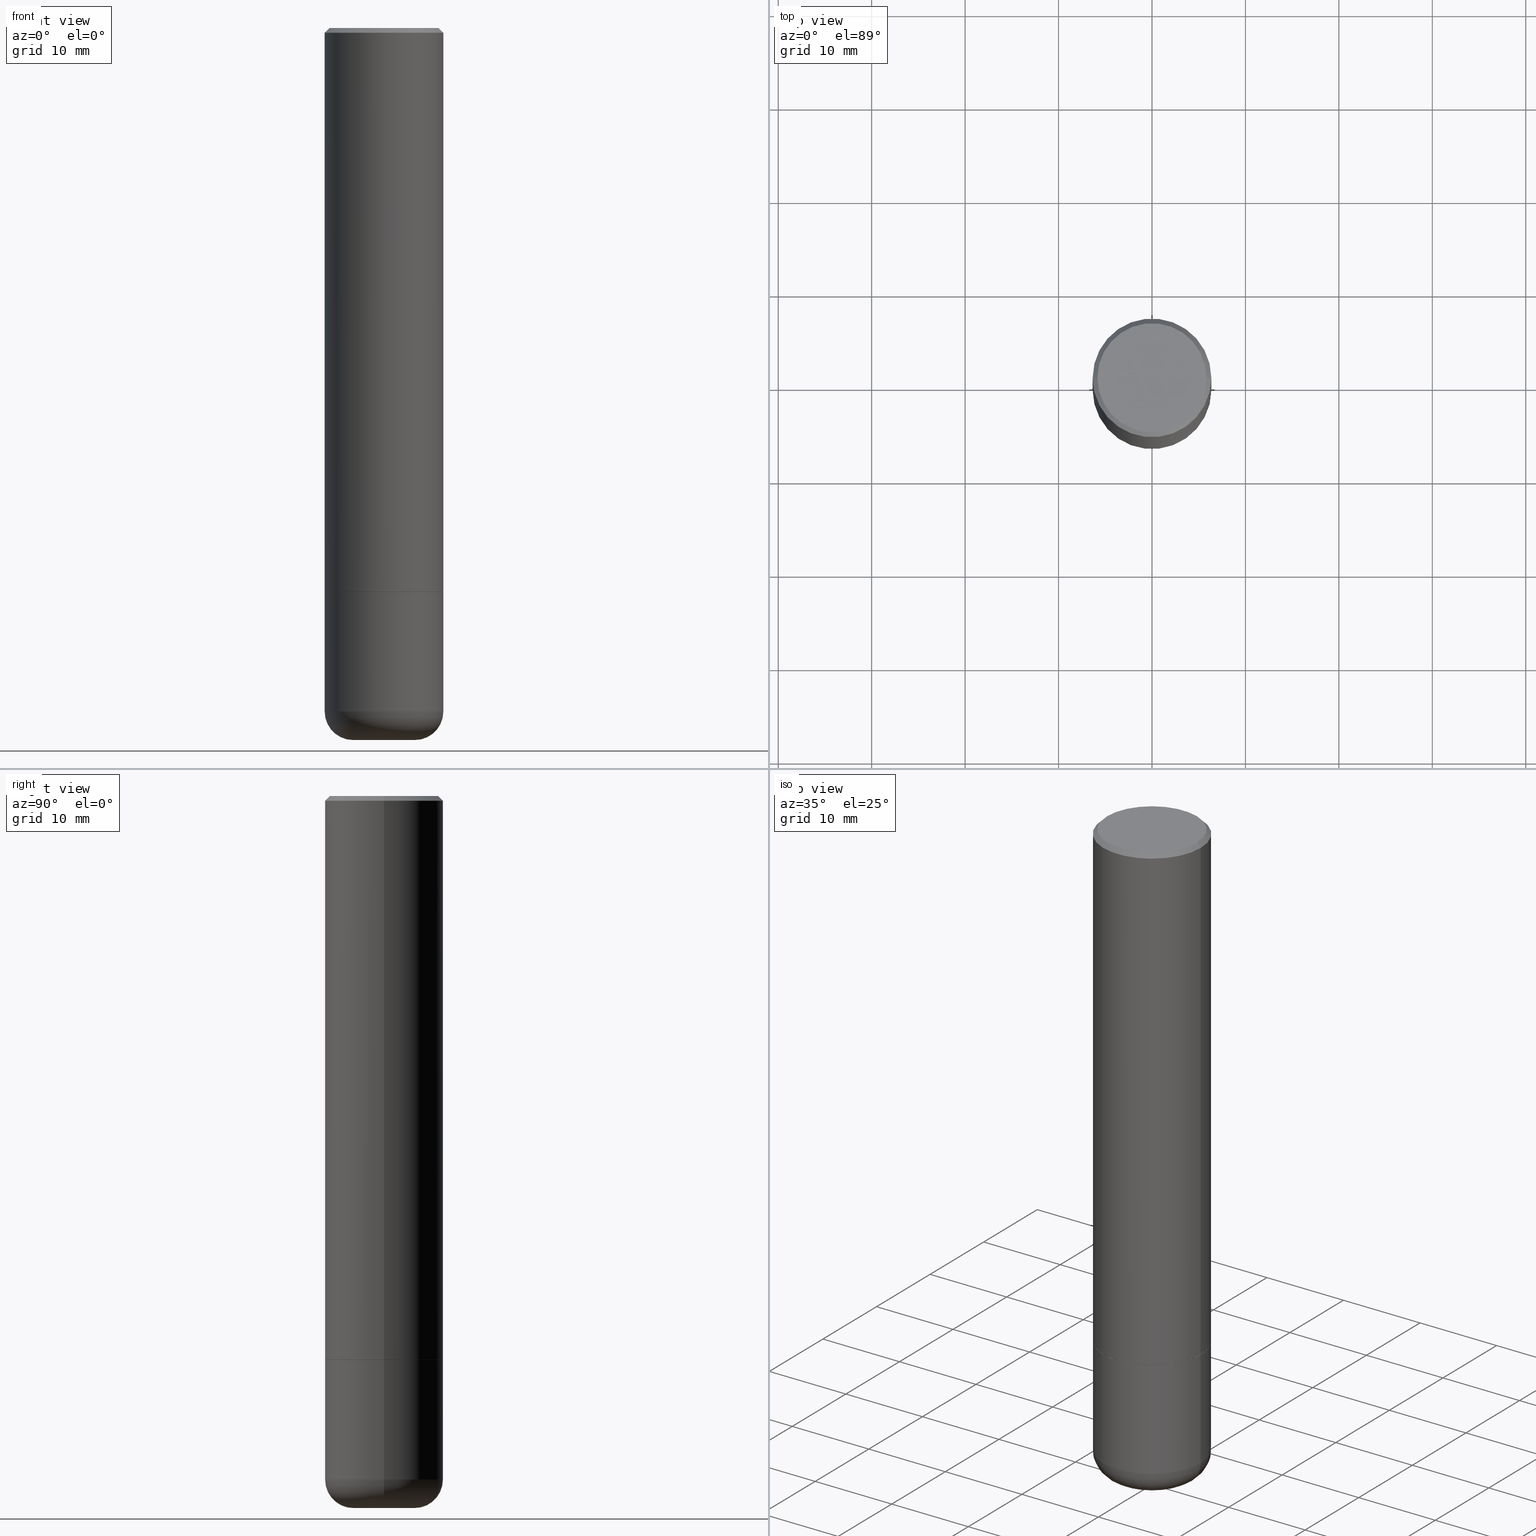
[diagram: canonical four-view strip — front | top / right | iso, engineering-drawing reading convention]
A machine part, canonical four-view strip (front | top / right | iso — engineering-drawing reading convention). The complete STEP part file that produces these views, byte-faithful:
ISO-10303-21;
HEADER;
FILE_DESCRIPTION (( 'STEP AP203' ),
    '1' );
FILE_NAME ('35692.STEP',
    '2022-11-02T20:43:39',
    ( '' ),
    ( '' ),
    'SwSTEP 2.0',
    'SolidWorks 2022',
    '' );
FILE_SCHEMA (( 'CONFIG_CONTROL_DESIGN' ));
ENDSEC;

DATA;
#1 = DIRECTION ( 'NONE',  ( -2.445468806185136597E-29, 3.491481338843145583E-15, 1.000000000000000000 ) ) ;
#2 = ORIENTED_EDGE ( 'NONE', *, *, #187, .T. ) ;
#3 = AXIS2_PLACEMENT_3D ( 'NONE', #98, #478, #486 ) ;
#4 = CYLINDRICAL_SURFACE ( 'NONE', #473, 0.2499999999999994449 ) ;
#5 = ORIENTED_EDGE ( 'NONE', *, *, #272, .T. ) ;
#6 = VECTOR ( 'NONE', #15, 39.37007874015748143 ) ;
#7 = DIRECTION ( 'NONE',  ( -1.000000000000000000, 7.105427357601001859E-15, 0.000000000000000000 ) ) ;
#8 = ADVANCED_FACE ( 'NONE', ( #192 ), #345, .T. ) ;
#9 = FACE_OUTER_BOUND ( 'NONE', #102, .T. ) ;
#10 = ORIENTED_EDGE ( 'NONE', *, *, #234, .F. ) ;
#11 = DIRECTION ( 'NONE',  ( 1.000000000000000000, -6.982962677686270655E-15, 4.883557194083114583E-29 ) ) ;
#12 = EDGE_CURVE ( 'NONE', #194, #444, #91, .T. ) ;
#13 = APPROVAL_DATE_TIME ( #344, #339 ) ;
#14 = VECTOR ( 'NONE', #199, 39.37007874015748854 ) ;
#15 = DIRECTION ( 'NONE',  ( -2.445468806185136877E-29, 3.491481338843145188E-15, 1.000000000000000000 ) ) ;
#16 = DIRECTION ( 'NONE',  ( -0.9993908270190957621, 6.856857904024554893E-15, -0.03489949670250130226 ) ) ;
#17 = CONICAL_SURFACE ( 'NONE', #134, 0.2489999999999995828, 0.7853981633974141952 ) ;
#18 =( NAMED_UNIT ( * ) SI_UNIT ( $, .STERADIAN. ) SOLID_ANGLE_UNIT ( ) );
#19 = AXIS2_PLACEMENT_3D ( 'NONE', #111, #159, #421 ) ;
#20 = APPROVAL_ROLE ( '' ) ;
#21 = ADVANCED_FACE ( 'NONE', ( #293 ), #174, .T. ) ;
#22 = DIRECTION ( 'NONE',  ( -2.445468806185136597E-29, 3.491481338843145583E-15, 1.000000000000000000 ) ) ;
#23 = DATE_AND_TIME ( #485, #222 ) ;
#24 = EDGE_CURVE ( 'NONE', #220, #57, #262, .T. ) ;
#25 = DIRECTION ( 'NONE',  ( -2.445468806185136597E-29, 3.491481338843145583E-15, 1.000000000000000000 ) ) ;
#26 = APPROVAL_PERSON_ORGANIZATION ( #204, #247, #312 ) ;
#27 = DIRECTION ( 'NONE',  ( 0.7071067811865475727, -7.319954787623256045E-15, -0.7071067811865474617 ) ) ;
#28 = DATE_TIME_ROLE ( 'classification_date' ) ;
#29 = DIRECTION ( 'NONE',  ( -6.982962677686266711E-15, -1.000000000000000000, 3.491481338843145583E-15 ) ) ;
#30 = APPROVAL_DATE_TIME ( #23, #213 ) ;
#31 = CARTESIAN_POINT ( 'NONE',  ( -0.2489999999999995828, -6.517718313361602992E-15, -2.375000000000000000 ) ) ;
#32 = VERTEX_POINT ( 'NONE', #308 ) ;
#33 = CIRCLE ( 'NONE', #367, 0.2500000000000000555 ) ;
#34 = DIRECTION ( 'NONE',  ( -2.445468806185136597E-29, 3.491481338843145583E-15, 1.000000000000000000 ) ) ;
#35 = ORIENTED_EDGE ( 'NONE', *, *, #150, .F. ) ;
#36 = EDGE_LOOP ( 'NONE', ( #142, #110 ) ) ;
#37 = DIRECTION ( 'NONE',  ( -2.445468806185136877E-29, 3.491481338843145188E-15, 1.000000000000000000 ) ) ;
#38 = DIRECTION ( 'NONE',  ( -2.445468806185136597E-29, 3.491481338843145583E-15, 1.000000000000000000 ) ) ;
#39 = ORIENTED_EDGE ( 'NONE', *, *, #41, .T. ) ;
#40 = DIRECTION ( 'NONE',  ( 1.000000000000000000, -6.982962677686269077E-15, 0.000000000000000000 ) ) ;
#41 = EDGE_CURVE ( 'NONE', #444, #409, #276, .T. ) ;
#42 = FACE_OUTER_BOUND ( 'NONE', #218, .T. ) ;
#43 = ORIENTED_EDGE ( 'NONE', *, *, #191, .F. ) ;
#44 = AXIS2_PLACEMENT_3D ( 'NONE', #453, #372, #337 ) ;
#45 = CARTESIAN_POINT ( 'NONE',  ( 7.336406418555409790E-29, -1.047444401652943635E-14, -3.000000000000000444 ) ) ;
#46 = ORIENTED_EDGE ( 'NONE', *, *, #371, .T. ) ;
#47 = DIRECTION ( 'NONE',  ( 1.000000000000000000, -6.982962677686259611E-15, 0.000000000000000000 ) ) ;
#48 = ORIENTED_EDGE ( 'NONE', *, *, #59, .T. ) ;
#49 = DIRECTION ( 'NONE',  ( -0.7071067811865232589, 7.493145998870265808E-15, 0.7071067811865715536 ) ) ;
#50 = AXIS2_PLACEMENT_3D ( 'NONE', #446, #323, #320 ) ;
#51 = DATE_TIME_ROLE ( 'creation_date' ) ;
#52 = CIRCLE ( 'NONE', #384, 0.2499999999999995837 ) ;
#53 = PLANE ( 'NONE',  #466 ) ;
#54 = DIRECTION ( 'NONE',  ( 1.000000000000000000, -6.982962677686270655E-15, 0.000000000000000000 ) ) ;
#55 = EDGE_LOOP ( 'NONE', ( #487, #411, #46, #225 ) ) ;
#56 = PERSON_AND_ORGANIZATION_ROLE ( 'design_owner' ) ;
#57 = VERTEX_POINT ( 'NONE', #90 ) ;
#58 = ADVANCED_FACE ( 'NONE', ( #391 ), #17, .T. ) ;
#59 = EDGE_CURVE ( 'NONE', #461, #374, #165, .T. ) ;
#60 = MECHANICAL_CONTEXT ( 'NONE', #394, 'mechanical' ) ;
#61 = AXIS2_PLACEMENT_3D ( 'NONE', #277, #314, #239 ) ;
#62 = DIRECTION ( 'NONE',  ( -1.000000000000000000, 6.982962677686259611E-15, 0.000000000000000000 ) ) ;
#63 = CC_DESIGN_PERSON_AND_ORGANIZATION_ASSIGNMENT ( #183, #438, ( #392 ) ) ;
#64 = DIRECTION ( 'NONE',  ( 1.000000000000000000, -6.982962677686266711E-15, 0.000000000000000000 ) ) ;
#65 = APPROVAL_PERSON_ORGANIZATION ( #351, #339, #20 ) ;
#66 = CARTESIAN_POINT ( 'NONE',  ( 0.2499999999999993061, -1.784954126219741456E-15, -0.02000000000000011838 ) ) ;
#67 = CARTESIAN_POINT ( 'NONE',  ( 7.336406418555409790E-29, -1.047444401652943635E-14, -3.000000000000000444 ) ) ;
#68 = ORIENTED_EDGE ( 'NONE', *, *, #41, .F. ) ;
#69 = DIRECTION ( 'NONE',  ( -2.445468806185136597E-29, 3.491481338843145583E-15, 1.000000000000000000 ) ) ;
#70 = ORIENTED_EDGE ( 'NONE', *, *, #359, .F. ) ;
#71 = VERTEX_POINT ( 'NONE', #313 ) ;
#72 = AXIS2_PLACEMENT_3D ( 'NONE', #139, #107, #481 ) ;
#73 = PLANE ( 'NONE',  #114 ) ;
#74 = EDGE_LOOP ( 'NONE', ( #301, #79, #116, #68 ) ) ;
#75 = EDGE_LOOP ( 'NONE', ( #369, #232, #39, #457 ) ) ;
#76 = CARTESIAN_POINT ( 'NONE',  ( 5.807988414689700538E-29, -8.292268179752471696E-15, -2.375000000000000000 ) ) ;
#77 = EDGE_LOOP ( 'NONE', ( #333, #417 ) ) ;
#78 = DIRECTION ( 'NONE',  ( 1.000000000000000000, -6.982962677686270655E-15, 0.000000000000000000 ) ) ;
#79 = ORIENTED_EDGE ( 'NONE', *, *, #153, .T. ) ;
#80 = CIRCLE ( 'NONE', #352, 0.1200000000000000927 ) ;
#81 = AXIS2_PLACEMENT_3D ( 'NONE', #329, #148, #402 ) ;
#82 = DIRECTION ( 'NONE',  ( -2.445468806185136597E-29, 3.491481338843145583E-15, 1.000000000000000000 ) ) ;
#83 = ORIENTED_EDGE ( 'NONE', *, *, #234, .T. ) ;
#84 = FACE_OUTER_BOUND ( 'NONE', #74, .T. ) ;
#85 = COORDINATED_UNIVERSAL_TIME_OFFSET ( 5, 0, .BEHIND. ) ;
#86 = CARTESIAN_POINT ( 'NONE',  ( 7.042961335728249090E-29, -1.005548220925756617E-14, -2.880004569232299527 ) ) ;
#87 = CARTESIAN_POINT ( 'NONE',  ( -0.2499999999999994449, 1.776356839400246520E-15, -1.229733772563723783E-29 ) ) ;
#88 = EDGE_CURVE ( 'NONE', #198, #194, #464, .T. ) ;
#89 = DIRECTION ( 'NONE',  ( -2.445468806185136597E-29, 3.491481338843145583E-15, 1.000000000000000000 ) ) ;
#90 = CARTESIAN_POINT ( 'NONE',  ( -0.2499999999999995559, -2.402946323194996317E-15, -2.374000000000000110 ) ) ;
#91 = CIRCLE ( 'NONE', #231, 0.2500000000000000555 ) ;
#92 = EDGE_CURVE ( 'NONE', #57, #32, #202, .T. ) ;
#93 = CIRCLE ( 'NONE', #61, 0.2489999999999995828 ) ;
#94 = COORDINATED_UNIVERSAL_TIME_OFFSET ( 5, 0, .BEHIND. ) ;
#95 = CC_DESIGN_SECURITY_CLASSIFICATION ( #392, ( #399 ) ) ;
#96 = EDGE_CURVE ( 'NONE', #57, #259, #128, .T. ) ;
#97 = DIRECTION ( 'NONE',  ( 1.000000000000000000, -6.982962677686269077E-15, 0.000000000000000000 ) ) ;
#98 = CARTESIAN_POINT ( 'NONE',  ( 7.335837353245335032E-29, -1.047363154208458493E-14, -2.999767298070359800 ) ) ;
#99 = PRODUCT_RELATED_PRODUCT_CATEGORY ( 'detail', '', ( #284 ) ) ;
#100 = CIRCLE ( 'NONE', #488, 0.2489999999999995828 ) ;
#101 = DIRECTION ( 'NONE',  ( -1.000000000000000000, 6.982962677686259611E-15, 0.000000000000000000 ) ) ;
#102 = EDGE_LOOP ( 'NONE', ( #70, #407, #200, #122 ) ) ;
#103 =( GEOMETRIC_REPRESENTATION_CONTEXT ( 3 ) GLOBAL_UNCERTAINTY_ASSIGNED_CONTEXT ( ( #331 ) ) GLOBAL_UNIT_ASSIGNED_CONTEXT ( ( #275, #387, #18 ) ) REPRESENTATION_CONTEXT ( 'NONE', 'WORKASPACE' ) );
#104 = DIRECTION ( 'NONE',  ( 7.105427357601001859E-15, 1.000000000000000000, -3.491481338843145583E-15 ) ) ;
#105 = CALENDAR_DATE ( 2022, 2, 11 ) ;
#106 = ADVANCED_FACE ( 'NONE', ( #299 ), #168, .T. ) ;
#107 = DIRECTION ( 'NONE',  ( -2.445468806185136597E-29, 3.491481338843145583E-15, 1.000000000000000000 ) ) ;
#108 = PRODUCT_DEFINITION_SHAPE ( 'NONE', 'NONE',  #427 ) ;
#109 = CARTESIAN_POINT ( 'NONE',  ( 0.1289528157401959862, -1.137491671602577837E-14, -3.000000000000000444 ) ) ;
#110 = ORIENTED_EDGE ( 'NONE', *, *, #359, .T. ) ;
#111 = CARTESIAN_POINT ( 'NONE',  ( 0.000000000000000000, 0.000000000000000000, 0.000000000000000000 ) ) ;
#112 = ORIENTED_EDGE ( 'NONE', *, *, #271, .T. ) ;
#113 = DIRECTION ( 'NONE',  ( 2.445468806185136597E-29, -3.491481338843145583E-15, -1.000000000000000000 ) ) ;
#114 = AXIS2_PLACEMENT_3D ( 'NONE', #76, #342, #223 ) ;
#115 = DIRECTION ( 'NONE',  ( 1.000000000000000000, -6.982962677686269866E-15, 0.000000000000000000 ) ) ;
#116 = ORIENTED_EDGE ( 'NONE', *, *, #350, .F. ) ;
#117 = MANIFOLD_SOLID_BREP ( 'Body-Move/Copy2[1]', #210 ) ;
#118 = CC_DESIGN_PERSON_AND_ORGANIZATION_ASSIGNMENT ( #201, #56, ( #284 ) ) ;
#119 = CARTESIAN_POINT ( 'NONE',  ( 0.2489999999999995828, -1.003102588649634920E-14, -2.375000000000000000 ) ) ;
#120 = EDGE_LOOP ( 'NONE', ( #492, #336, #462, #246 ) ) ;
#121 = DIRECTION ( 'NONE',  ( 1.000000000000000000, -6.982962677686266711E-15, 4.876176775795935232E-29 ) ) ;
#122 = ORIENTED_EDGE ( 'NONE', *, *, #187, .F. ) ;
#123 = VECTOR ( 'NONE', #135, 39.37007874015748143 ) ;
#124 = CIRCLE ( 'NONE', #430, 0.1289528157401959862 ) ;
#125 = ORIENTED_EDGE ( 'NONE', *, *, #143, .F. ) ;
#126 = ADVANCED_FACE ( 'NONE', ( #248 ), #163, .F. ) ;
#127 = CARTESIAN_POINT ( 'NONE',  ( 7.335837353245335032E-29, -1.047363154208458493E-14, -2.999767298070359800 ) ) ;
#128 = LINE ( 'NONE', #87, #424 ) ;
#129 = CARTESIAN_POINT ( 'NONE',  ( -0.1300000000000001710, -9.131776652769433533E-15, -2.880004569232299527 ) ) ;
#130 = LOCAL_TIME ( 16, 43, 39.00000000000000000, #318 ) ;
#131 = DIRECTION ( 'NONE',  ( 2.438088387897960049E-29, -3.491481338843145188E-15, -1.000000000000000000 ) ) ;
#132 = CALENDAR_DATE ( 2022, 2, 11 ) ;
#133 = DIRECTION ( 'NONE',  ( 1.000000000000000000, -6.982962677686266711E-15, 0.000000000000000000 ) ) ;
#134 = AXIS2_PLACEMENT_3D ( 'NONE', #470, #22, #133 ) ;
#135 = DIRECTION ( 'NONE',  ( 0.9993908270190957621, -6.978169709227543066E-15, -0.03489949670250130226 ) ) ;
#136 = APPROVAL_DATE_TIME ( #431, #247 ) ;
#137 = DIRECTION ( 'NONE',  ( 1.000000000000000000, -6.982962677686262766E-15, 0.000000000000000000 ) ) ;
#138 = EDGE_LOOP ( 'NONE', ( #295, #48, #255 ) ) ;
#139 = CARTESIAN_POINT ( 'NONE',  ( 4.890937612370302936E-31, -6.982962677686332285E-17, -0.02000000000000011838 ) ) ;
#140 = VECTOR ( 'NONE', #211, 39.37007874015748143 ) ;
#141 = DIRECTION ( 'NONE',  ( -1.000000000000000000, 6.982962677686265922E-15, -4.876176775795935793E-29 ) ) ;
#142 = ORIENTED_EDGE ( 'NONE', *, *, #330, .T. ) ;
#143 = EDGE_CURVE ( 'NONE', #160, #259, #397, .T. ) ;
#144 = CC_DESIGN_DATE_AND_TIME_ASSIGNMENT ( #383, #51, ( #427 ) ) ;
#145 = AXIS2_PLACEMENT_3D ( 'NONE', #340, #309, #11 ) ;
#146 = DIRECTION ( 'NONE',  ( -2.445468806185136597E-29, 3.491481338843145583E-15, 1.000000000000000000 ) ) ;
#147 = DIRECTION ( 'NONE',  ( -2.445468806185136597E-29, 3.491481338843145583E-15, 1.000000000000000000 ) ) ;
#148 = DIRECTION ( 'NONE',  ( -2.445468806185136597E-29, 3.491481338843145583E-15, 1.000000000000000000 ) ) ;
#149 = EDGE_LOOP ( 'NONE', ( #454, #227, #307, #158 ) ) ;
#150 = EDGE_CURVE ( 'NONE', #264, #444, #80, .T. ) ;
#151 = CARTESIAN_POINT ( 'NONE',  ( -1.043851414335219820E-46, 1.490343170380447200E-32, 4.268512490100411279E-18 ) ) ;
#152 = VERTEX_POINT ( 'NONE', #290 ) ;
#153 = EDGE_CURVE ( 'NONE', #194, #341, #401, .T. ) ;
#154 = FACE_OUTER_BOUND ( 'NONE', #381, .T. ) ;
#155 = ORIENTED_EDGE ( 'NONE', *, *, #474, .F. ) ;
#156 = CONICAL_SURFACE ( 'NONE', #480, 0.1289528157401959862, 1.562069680534929894 ) ;
#157 = CARTESIAN_POINT ( 'NONE',  ( 0.000000000000000000, 0.000000000000000000, 0.000000000000000000 ) ) ;
#158 = ORIENTED_EDGE ( 'NONE', *, *, #92, .F. ) ;
#159 = DIRECTION ( 'NONE',  ( -2.445468806185136597E-29, 3.491481338843145583E-15, 1.000000000000000000 ) ) ;
#160 = VERTEX_POINT ( 'NONE', #66 ) ;
#161 = CARTESIAN_POINT ( 'NONE',  ( 0.2499999999999995837, -1.003800884917403364E-14, -2.375000000000000000 ) ) ;
#162 = CC_DESIGN_PERSON_AND_ORGANIZATION_ASSIGNMENT ( #441, #216, ( #399 ) ) ;
#163 = CONICAL_SURFACE ( 'NONE', #3, 0.1022878157401959226, 1.535889741755009696 ) ;
#164 = PERSON_AND_ORGANIZATION ( #304, #238 ) ;
#165 = LINE ( 'NONE', #349, #184 ) ;
#166 = LINE ( 'NONE', #476, #6 ) ;
#167 = DIRECTION ( 'NONE',  ( -2.445468806185136877E-29, 3.491481338843145188E-15, 1.000000000000000000 ) ) ;
#168 = CYLINDRICAL_SURFACE ( 'NONE', #50, 0.2499999999999994449 ) ;
#169 = APPROVAL_STATUS ( 'not_yet_approved' ) ;
#170 = APPROVAL_PERSON_ORGANIZATION ( #445, #213, #326 ) ;
#171 = LOCAL_TIME ( 16, 43, 39.00000000000000000, #358 ) ;
#172 = DIRECTION ( 'NONE',  ( 1.000000000000000000, 0.000000000000000000, 0.000000000000000000 ) ) ;
#173 = LINE ( 'NONE', #362, #415 ) ;
#174 = CONICAL_SURFACE ( 'NONE', #285, 0.2499999999999993061, 0.7853981633974483900 ) ;
#175 = DIRECTION ( 'NONE',  ( 0.9999619230641714207, -6.890705306874825328E-15, -0.008726535498369011531 ) ) ;
#176 = AXIS2_PLACEMENT_3D ( 'NONE', #332, #1, #294 ) ;
#177 = PERSON_AND_ORGANIZATION ( #304, #238 ) ;
#178 = CARTESIAN_POINT ( 'NONE',  ( 5.807988414689700538E-29, -8.292268179752471696E-15, -2.375000000000000000 ) ) ;
#179 = EDGE_CURVE ( 'NONE', #461, #71, #396, .T. ) ;
#180 = ORIENTED_EDGE ( 'NONE', *, *, #330, .F. ) ;
#181 = APPROVAL_STATUS ( 'not_yet_approved' ) ;
#182 = CARTESIAN_POINT ( 'NONE',  ( 1.745740669421621503E-15, 0.2499999999999912847, -2.375000000000000888 ) ) ;
#183 = PERSON_AND_ORGANIZATION ( #304, #238 ) ;
#184 = VECTOR ( 'NONE', #16, 39.37007874015748143 ) ;
#185 = CARTESIAN_POINT ( 'NONE',  ( 0.2489999999999995828, -1.003102588649634920E-14, -2.375000000000000000 ) ) ;
#186 = CIRCLE ( 'NONE', #287, 0.2499999999999995837 ) ;
#187 = EDGE_CURVE ( 'NONE', #343, #259, #368, .T. ) ;
#188 = CARTESIAN_POINT ( 'NONE',  ( 7.042961335728249090E-29, -1.005548220925756617E-14, -2.880004569232299527 ) ) ;
#189 = CARTESIAN_POINT ( 'NONE',  ( 4.890937612370302936E-31, -6.982962677686332285E-17, -0.02000000000000011838 ) ) ;
#190 = ORIENTED_EDGE ( 'NONE', *, *, #260, .F. ) ;
#191 = EDGE_CURVE ( 'NONE', #152, #160, #173, .T. ) ;
#192 = FACE_OUTER_BOUND ( 'NONE', #149, .T. ) ;
#193 = DIRECTION ( 'NONE',  ( 2.445468806185136597E-29, -3.491481338843145583E-15, -1.000000000000000000 ) ) ;
#194 = VERTEX_POINT ( 'NONE', #214 ) ;
#195 = LINE ( 'NONE', #235, #14 ) ;
#196 = CLOSED_SHELL ( 'NONE', ( #58, #106, #302, #21, #437, #8, #385, #468 ) ) ;
#197 = DIRECTION ( 'NONE',  ( 1.000000000000000000, -6.982962677686259611E-15, 0.000000000000000000 ) ) ;
#198 = VERTEX_POINT ( 'NONE', #279 ) ;
#199 = DIRECTION ( 'NONE',  ( -0.9999619230641714207, 6.952228252019186602E-15, -0.008726535498369011531 ) ) ;
#200 = ORIENTED_EDGE ( 'NONE', *, *, #143, .T. ) ;
#201 = PERSON_AND_ORGANIZATION ( #304, #238 ) ;
#202 = CIRCLE ( 'NONE', #328, 0.2499999999999995837 ) ;
#203 = AXIS2_PLACEMENT_3D ( 'NONE', #151, #34, #410 ) ;
#204 = PERSON_AND_ORGANIZATION ( #304, #238 ) ;
#205 = LOCAL_TIME ( 16, 43, 39.00000000000000000, #94 ) ;
#206 = DIRECTION ( 'NONE',  ( 0.000000000000000000, 0.000000000000000000, 1.000000000000000000 ) ) ;
#207 = APPLICATION_PROTOCOL_DEFINITION ( 'international standard', 'config_control_design', 1994, #479 ) ;
#208 = AXIS2_PLACEMENT_3D ( 'NONE', #86, #89, #316 ) ;
#209 = CARTESIAN_POINT ( 'NONE',  ( 0.1289528157401959862, -1.135912455072205370E-14, -3.000000000000000444 ) ) ;
#210 = CLOSED_SHELL ( 'NONE', ( #265, #450, #319, #126, #317, #215, #292, #356, #280 ) ) ;
#211 = DIRECTION ( 'NONE',  ( -2.445468806185136877E-29, 3.491481338843145188E-15, 1.000000000000000000 ) ) ;
#212 = CIRCLE ( 'NONE', #269, 0.1022878157401959226 ) ;
#213 = APPROVAL ( #181, 'UNSPECIFIED' ) ;
#214 = CARTESIAN_POINT ( 'NONE',  ( -0.2500000000000000555, -7.397518355104768470E-15, -2.880004569232299527 ) ) ;
#215 = ADVANCED_FACE ( 'NONE', ( #360 ), #282, .F. ) ;
#216 = PERSON_AND_ORGANIZATION_ROLE ( 'creator' ) ;
#217 = FACE_OUTER_BOUND ( 'NONE', #75, .T. ) ;
#218 = EDGE_LOOP ( 'NONE', ( #403, #288, #229, #268 ) ) ;
#219 = DIRECTION ( 'NONE',  ( 1.000000000000000000, -6.982962677686267499E-15, 0.000000000000000000 ) ) ;
#220 = VERTEX_POINT ( 'NONE', #31 ) ;
#221 = CC_DESIGN_APPROVAL ( #339, ( #427 ) ) ;
#222 = LOCAL_TIME ( 16, 43, 39.00000000000000000, #435 ) ;
#223 = DIRECTION ( 'NONE',  ( 1.000000000000000000, -6.982962677686265922E-15, 4.876176775795935793E-29 ) ) ;
#224 = ORIENTED_EDGE ( 'NONE', *, *, #463, .F. ) ;
#225 = ORIENTED_EDGE ( 'NONE', *, *, #398, .F. ) ;
#226 = FACE_OUTER_BOUND ( 'NONE', #120, .T. ) ;
#227 = ORIENTED_EDGE ( 'NONE', *, *, #482, .T. ) ;
#228 = DIRECTION ( 'NONE',  ( 2.445468806185136597E-29, -3.491481338843145583E-15, -1.000000000000000000 ) ) ;
#229 = ORIENTED_EDGE ( 'NONE', *, *, #150, .T. ) ;
#230 = CARTESIAN_POINT ( 'NONE',  ( 5.805542945883514935E-29, -8.288776698413628688E-15, -2.374000000000000110 ) ) ;
#231 = AXIS2_PLACEMENT_3D ( 'NONE', #188, #146, #40 ) ;
#232 = ORIENTED_EDGE ( 'NONE', *, *, #12, .T. ) ;
#233 = CONICAL_SURFACE ( 'NONE', #250, 0.1289528157401959862, 1.562069680534929894 ) ;
#234 = EDGE_CURVE ( 'NONE', #305, #220, #100, .T. ) ;
#235 = CARTESIAN_POINT ( 'NONE',  ( -0.1289528157401959862, -9.573971317033095915E-15, -3.000000000000000444 ) ) ;
#236 = CARTESIAN_POINT ( 'NONE',  ( -0.2499999999999995837, -7.397518355104770047E-15, -2.375000000000000000 ) ) ;
#237 = CALENDAR_DATE ( 2022, 2, 11 ) ;
#238 = ORGANIZATION ( 'UNSPECIFIED', 'UNSPECIFIED', '' ) ;
#239 = DIRECTION ( 'NONE',  ( 1.000000000000000000, -6.982962677686266711E-15, 0.000000000000000000 ) ) ;
#240 =( LENGTH_UNIT ( ) NAMED_UNIT ( * ) SI_UNIT ( $, .METRE. ) );
#241 = VECTOR ( 'NONE', #490, 39.37007874015748143 ) ;
#242 = EDGE_CURVE ( 'NONE', #444, #194, #33, .T. ) ;
#243 = AXIS2_PLACEMENT_3D ( 'NONE', #127, #425, #469 ) ;
#244 = DIRECTION ( 'NONE',  ( 2.438088387897960049E-29, -3.491481338843145188E-15, -1.000000000000000000 ) ) ;
#245 = CARTESIAN_POINT ( 'NONE',  ( 4.890937612370302936E-31, -6.982962677686332285E-17, -0.02000000000000011838 ) ) ;
#246 = ORIENTED_EDGE ( 'NONE', *, *, #271, .F. ) ;
#247 = APPROVAL ( #347, 'UNSPECIFIED' ) ;
#248 = FACE_OUTER_BOUND ( 'NONE', #267, .T. ) ;
#249 = CC_DESIGN_PERSON_AND_ORGANIZATION_ASSIGNMENT ( #164, #422, ( #427 ) ) ;
#250 = AXIS2_PLACEMENT_3D ( 'NONE', #483, #395, #62 ) ;
#251 = EDGE_LOOP ( 'NONE', ( #366, #5, #388, #414 ) ) ;
#252 = TOROIDAL_SURFACE ( 'NONE', #145, 0.1300000000000001710, 0.1200000000000000927 ) ;
#253 = LINE ( 'NONE', #209, #346 ) ;
#254 = FACE_OUTER_BOUND ( 'NONE', #55, .T. ) ;
#255 = ORIENTED_EDGE ( 'NONE', *, *, #423, .F. ) ;
#256 = ORIENTED_EDGE ( 'NONE', *, *, #389, .F. ) ;
#257 = CARTESIAN_POINT ( 'NONE',  ( 5.807988414689700538E-29, -8.292268179752471696E-15, -2.375000000000000000 ) ) ;
#258 = DIRECTION ( 'NONE',  ( -2.445468806185136597E-29, 3.491481338843145583E-15, 1.000000000000000000 ) ) ;
#259 = VERTEX_POINT ( 'NONE', #286 ) ;
#260 = EDGE_CURVE ( 'NONE', #305, #32, #443, .T. ) ;
#261 = CIRCLE ( 'NONE', #361, 0.1289528157401959862 ) ;
#262 = LINE ( 'NONE', #348, #274 ) ;
#263 = CARTESIAN_POINT ( 'NONE',  ( 7.335837353245335032E-29, -1.047363154208458493E-14, -2.999767298070359800 ) ) ;
#264 = VERTEX_POINT ( 'NONE', #109 ) ;
#265 = ADVANCED_FACE ( 'NONE', ( #324 ), #233, .F. ) ;
#266 = CARTESIAN_POINT ( 'NONE',  ( 5.805542945883514935E-29, -8.288776698413628688E-15, -2.374000000000000110 ) ) ;
#267 = EDGE_LOOP ( 'NONE', ( #291, #325, #155 ) ) ;
#268 = ORIENTED_EDGE ( 'NONE', *, *, #12, .F. ) ;
#269 = AXIS2_PLACEMENT_3D ( 'NONE', #263, #38, #115 ) ;
#270 = CARTESIAN_POINT ( 'NONE',  ( 7.326834392838516262E-29, -1.046154361316562163E-14, -2.996195328835081995 ) ) ;
#271 = EDGE_CURVE ( 'NONE', #259, #160, #475, .T. ) ;
#272 = EDGE_CURVE ( 'NONE', #71, #264, #253, .T. ) ;
#273 = APPLICATION_PROTOCOL_DEFINITION ( 'international standard', 'config_control_design', 1994, #394 ) ;
#274 = VECTOR ( 'NONE', #49, 39.37007874015748854 ) ;
#275 =( CONVERSION_BASED_UNIT ( 'INCH', #472 ) LENGTH_UNIT ( ) NAMED_UNIT ( #426 ) );
#276 = LINE ( 'NONE', #353, #390 ) ;
#277 = CARTESIAN_POINT ( 'NONE',  ( 5.807988414689700538E-29, -8.292268179752471696E-15, -2.375000000000000000 ) ) ;
#278 = AXIS2_PLACEMENT_3D ( 'NONE', #189, #193, #375 ) ;
#279 = CARTESIAN_POINT ( 'NONE',  ( -0.1289528157401959862, -8.918652260793341109E-15, -3.000000000000000444 ) ) ;
#280 = ADVANCED_FACE ( 'NONE', ( #254 ), #156, .F. ) ;
#281 = CARTESIAN_POINT ( 'NONE',  ( -0.2499999999999993061, 1.675911042644698449E-15, -0.02000000000000011838 ) ) ;
#282 = PLANE ( 'NONE',  #471 ) ;
#283 = ORIENTED_EDGE ( 'NONE', *, *, #398, .T. ) ;
#284 = PRODUCT ( '35692', '35692', '', ( #60 ) ) ;
#285 = AXIS2_PLACEMENT_3D ( 'NONE', #458, #113, #449 ) ;
#286 = CARTESIAN_POINT ( 'NONE',  ( -0.2499999999999993061, 1.675911042644698449E-15, -0.02000000000000011838 ) ) ;
#287 = AXIS2_PLACEMENT_3D ( 'NONE', #451, #380, #459 ) ;
#288 = ORIENTED_EDGE ( 'NONE', *, *, #357, .T. ) ;
#289 = SHAPE_DEFINITION_REPRESENTATION ( #108, #433 ) ;
#290 = CARTESIAN_POINT ( 'NONE',  ( 0.2299999999999991773, -1.681434332853594081E-15, 4.268512490111905999E-18 ) ) ;
#291 = ORIENTED_EDGE ( 'NONE', *, *, #59, .F. ) ;
#292 = ADVANCED_FACE ( 'NONE', ( #217 ), #365, .T. ) ;
#293 = FACE_OUTER_BOUND ( 'NONE', #460, .T. ) ;
#294 = DIRECTION ( 'NONE',  ( 1.000000000000000000, -6.982962677686267499E-15, 4.876225828469326258E-29 ) ) ;
#295 = ORIENTED_EDGE ( 'NONE', *, *, #179, .F. ) ;
#296 = DESIGN_CONTEXT ( 'detailed design', #479, 'design' ) ;
#297 = DIRECTION ( 'NONE',  ( -2.445468806185136597E-29, 3.491481338843145583E-15, 1.000000000000000000 ) ) ;
#298 = AXIS2_PLACEMENT_3D ( 'NONE', #245, #69, #219 ) ;
#299 = FACE_OUTER_BOUND ( 'NONE', #338, .T. ) ;
#300 = DIRECTION ( 'NONE',  ( -2.445468806185136597E-29, 3.491481338843145583E-15, 1.000000000000000000 ) ) ;
#301 = ORIENTED_EDGE ( 'NONE', *, *, #242, .T. ) ;
#302 = ADVANCED_FACE ( 'NONE', ( #9 ), #418, .T. ) ;
#303 = DIRECTION ( 'NONE',  ( -2.445468806185136597E-29, 3.491481338843145583E-15, 1.000000000000000000 ) ) ;
#304 = PERSON ( 'UNSPECIFIED', 'UNSPECIFIED', 'UNSPECIFIED', ('UNSPECIFIED'), ('UNSPECIFIED'), ('UNSPECIFIED') ) ;
#305 = VERTEX_POINT ( 'NONE', #119 ) ;
#306 = CARTESIAN_POINT ( 'NONE',  ( 7.335837353245335032E-29, -1.047363154208458493E-14, -2.999767298070359800 ) ) ;
#307 = ORIENTED_EDGE ( 'NONE', *, *, #260, .T. ) ;
#308 = CARTESIAN_POINT ( 'NONE',  ( 0.2499999999999995837, -1.003451736783519379E-14, -2.374000000000000110 ) ) ;
#309 = DIRECTION ( 'NONE',  ( -2.445468806185136597E-29, 3.491481338843145583E-15, 1.000000000000000000 ) ) ;
#310 = TOROIDAL_SURFACE ( 'NONE', #208, 0.1300000000000001710, 0.1200000000000000927 ) ;
#311 = CC_DESIGN_APPROVAL ( #213, ( #392 ) ) ;
#312 = APPROVAL_ROLE ( '' ) ;
#313 = CARTESIAN_POINT ( 'NONE',  ( 0.1022878157401959226, -1.117537689716662180E-14, -2.999767298070359800 ) ) ;
#314 = DIRECTION ( 'NONE',  ( -2.445468806185136597E-29, 3.491481338843145583E-15, 1.000000000000000000 ) ) ;
#315 = CIRCLE ( 'NONE', #243, 0.1022878157401959226 ) ;
#316 = DIRECTION ( 'NONE',  ( 1.000000000000000000, -6.982962677686270655E-15, 4.883557194083114583E-29 ) ) ;
#317 = ADVANCED_FACE ( 'NONE', ( #377 ), #354, .F. ) ;
#318 = COORDINATED_UNIVERSAL_TIME_OFFSET ( 5, 0, .BEHIND. ) ;
#319 = ADVANCED_FACE ( 'NONE', ( #84 ), #413, .T. ) ;
#320 = DIRECTION ( 'NONE',  ( 1.000000000000000000, -6.982962677686266711E-15, 4.876176775795935232E-29 ) ) ;
#321 = PERSON_AND_ORGANIZATION_ROLE ( 'design_supplier' ) ;
#322 = CIRCLE ( 'NONE', #176, 0.2299999999999991773 ) ;
#323 = DIRECTION ( 'NONE',  ( -2.445468806185136597E-29, 3.491481338843145583E-15, 1.000000000000000000 ) ) ;
#324 = FACE_OUTER_BOUND ( 'NONE', #251, .T. ) ;
#325 = ORIENTED_EDGE ( 'NONE', *, *, #179, .T. ) ;
#326 = APPROVAL_ROLE ( '' ) ;
#327 = CARTESIAN_POINT ( 'NONE',  ( 7.042961335728249090E-29, -1.005548220925756617E-14, -2.880004569232299527 ) ) ;
#328 = AXIS2_PLACEMENT_3D ( 'NONE', #230, #147, #54 ) ;
#329 = CARTESIAN_POINT ( 'NONE',  ( 0.000000000000000000, 0.000000000000000000, 0.000000000000000000 ) ) ;
#330 = EDGE_CURVE ( 'NONE', #343, #152, #489, .T. ) ;
#331 = UNCERTAINTY_MEASURE_WITH_UNIT (LENGTH_MEASURE( 1.000000000000000082E-05 ), #275, 'distance_accuracy_value', 'NONE');
#332 = CARTESIAN_POINT ( 'NONE',  ( -1.043851414335219820E-46, 1.490343170380447200E-32, 4.268512490100411279E-18 ) ) ;
#333 = ORIENTED_EDGE ( 'NONE', *, *, #350, .T. ) ;
#334 = ORIENTED_EDGE ( 'NONE', *, *, #96, .T. ) ;
#335 = CARTESIAN_POINT ( 'NONE',  ( 7.336406418555409790E-29, -1.047444401652943635E-14, -3.000000000000000444 ) ) ;
#336 = ORIENTED_EDGE ( 'NONE', *, *, #92, .T. ) ;
#337 = DIRECTION ( 'NONE',  ( 1.000000000000000000, -6.982962677686262766E-15, 0.000000000000000000 ) ) ;
#338 = EDGE_LOOP ( 'NONE', ( #484, #334, #125, #224 ) ) ;
#339 = APPROVAL ( #169, 'UNSPECIFIED' ) ;
#340 = CARTESIAN_POINT ( 'NONE',  ( 7.042961335728249090E-29, -1.005548220925756617E-14, -2.880004569232299527 ) ) ;
#341 = VERTEX_POINT ( 'NONE', #236 ) ;
#342 = DIRECTION ( 'NONE',  ( -2.438088387897960049E-29, 3.491481338843145188E-15, 1.000000000000000000 ) ) ;
#343 = VERTEX_POINT ( 'NONE', #491 ) ;
#344 = DATE_AND_TIME ( #132, #130 ) ;
#345 = CONICAL_SURFACE ( 'NONE', #382, 0.2489999999999995828, 0.7853981633974141952 ) ;
#346 = VECTOR ( 'NONE', #175, 39.37007874015748854 ) ;
#347 = APPROVAL_STATUS ( 'not_yet_approved' ) ;
#348 = CARTESIAN_POINT ( 'NONE',  ( -0.2489999999999995828, -6.523016767709824606E-15, -2.375000000000000000 ) ) ;
#349 = CARTESIAN_POINT ( 'NONE',  ( -0.1022878157401959226, -9.759359542388745931E-15, -2.999767298070359800 ) ) ;
#350 = EDGE_CURVE ( 'NONE', #409, #341, #186, .T. ) ;
#351 = PERSON_AND_ORGANIZATION ( #304, #238 ) ;
#352 = AXIS2_PLACEMENT_3D ( 'NONE', #363, #29, #137 ) ;
#353 = CARTESIAN_POINT ( 'NONE',  ( 0.2499999999999998057, -1.745740669421565297E-15, 1.219044193948982967E-29 ) ) ;
#354 = CONICAL_SURFACE ( 'NONE', #408, 0.1022878157401959226, 1.535889741755009696 ) ;
#355 = DIRECTION ( 'NONE',  ( -1.000000000000000000, 6.982962677686265922E-15, -4.876176775795935793E-29 ) ) ;
#356 = ADVANCED_FACE ( 'NONE', ( #42 ), #252, .T. ) ;
#357 = EDGE_CURVE ( 'NONE', #198, #264, #261, .T. ) ;
#358 = COORDINATED_UNIVERSAL_TIME_OFFSET ( 5, 0, .BEHIND. ) ;
#359 = EDGE_CURVE ( 'NONE', #152, #343, #322, .T. ) ;
#360 = FACE_OUTER_BOUND ( 'NONE', #77, .T. ) ;
#361 = AXIS2_PLACEMENT_3D ( 'NONE', #335, #258, #47 ) ;
#362 = CARTESIAN_POINT ( 'NONE',  ( 0.2499999999999993061, -1.784954126219741456E-15, -0.02000000000000011838 ) ) ;
#363 = CARTESIAN_POINT ( 'NONE',  ( 0.1300000000000001710, -1.096326735735678116E-14, -2.880004569232299527 ) ) ;
#364 = SECURITY_CLASSIFICATION_LEVEL ( 'unclassified' ) ;
#365 = CYLINDRICAL_SURFACE ( 'NONE', #81, 0.2499999999999998057 ) ;
#366 = ORIENTED_EDGE ( 'NONE', *, *, #474, .T. ) ;
#367 = AXIS2_PLACEMENT_3D ( 'NONE', #327, #432, #97 ) ;
#368 = LINE ( 'NONE', #281, #241 ) ;
#369 = ORIENTED_EDGE ( 'NONE', *, *, #153, .F. ) ;
#370 = AXIS2_PLACEMENT_3D ( 'NONE', #428, #206, #172 ) ;
#371 = EDGE_CURVE ( 'NONE', #374, #198, #195, .T. ) ;
#372 = DIRECTION ( 'NONE',  ( -2.445468806185136597E-29, 3.491481338843145583E-15, 1.000000000000000000 ) ) ;
#373 = EDGE_LOOP ( 'NONE', ( #83, #378, #256, #190 ) ) ;
#374 = VERTEX_POINT ( 'NONE', #405 ) ;
#375 = DIRECTION ( 'NONE',  ( -1.000000000000000000, 6.982962677686267499E-15, 0.000000000000000000 ) ) ;
#376 = ORIENTED_EDGE ( 'NONE', *, *, #242, .F. ) ;
#377 = FACE_OUTER_BOUND ( 'NONE', #138, .T. ) ;
#378 = ORIENTED_EDGE ( 'NONE', *, *, #24, .T. ) ;
#379 = LOCAL_TIME ( 16, 43, 39.00000000000000000, #85 ) ;
#380 = DIRECTION ( 'NONE',  ( -2.445468806185136597E-29, 3.491481338843145583E-15, 1.000000000000000000 ) ) ;
#381 = EDGE_LOOP ( 'NONE', ( #10, #452 ) ) ;
#382 = AXIS2_PLACEMENT_3D ( 'NONE', #257, #297, #412 ) ;
#383 = DATE_AND_TIME ( #237, #379 ) ;
#384 = AXIS2_PLACEMENT_3D ( 'NONE', #266, #82, #78 ) ;
#385 = ADVANCED_FACE ( 'NONE', ( #154 ), #73, .F. ) ;
#386 = FACE_OUTER_BOUND ( 'NONE', #36, .T. ) ;
#387 =( NAMED_UNIT ( * ) PLANE_ANGLE_UNIT ( ) SI_UNIT ( $, .RADIAN. ) );
#388 = ORIENTED_EDGE ( 'NONE', *, *, #357, .F. ) ;
#389 = EDGE_CURVE ( 'NONE', #32, #57, #52, .T. ) ;
#390 = VECTOR ( 'NONE', #167, 39.37007874015748143 ) ;
#391 = FACE_OUTER_BOUND ( 'NONE', #373, .T. ) ;
#392 = SECURITY_CLASSIFICATION ( '', '', #364 ) ;
#393 = DATE_AND_TIME ( #477, #205 ) ;
#394 = APPLICATION_CONTEXT ( 'configuration controlled 3d designs of mechanical parts and assemblies' ) ;
#395 = DIRECTION ( 'NONE',  ( 2.445468806185136597E-29, -3.491481338843145583E-15, -1.000000000000000000 ) ) ;
#396 = LINE ( 'NONE', #447, #123 ) ;
#397 = CIRCLE ( 'NONE', #298, 0.2499999999999993061 ) ;
#398 = EDGE_CURVE ( 'NONE', #264, #198, #124, .T. ) ;
#399 = PRODUCT_DEFINITION_FORMATION_WITH_SPECIFIED_SOURCE ( 'ANY', '', #284, .NOT_KNOWN. ) ;
#400 = DIRECTION ( 'NONE',  ( 0.7071067811865232589, -2.468850131082003836E-15, 0.7071067811865715536 ) ) ;
#401 = LINE ( 'NONE', #436, #140 ) ;
#402 = DIRECTION ( 'NONE',  ( 1.000000000000000000, -6.982962677686266711E-15, 4.876176775795935793E-29 ) ) ;
#403 = ORIENTED_EDGE ( 'NONE', *, *, #88, .F. ) ;
#404 = AXIS2_PLACEMENT_3D ( 'NONE', #129, #104, #7 ) ;
#405 = CARTESIAN_POINT ( 'NONE',  ( -0.1022878157401959226, -9.759359542388745931E-15, -2.999767298070359800 ) ) ;
#406 = CC_DESIGN_PERSON_AND_ORGANIZATION_ASSIGNMENT ( #177, #321, ( #399 ) ) ;
#407 = ORIENTED_EDGE ( 'NONE', *, *, #191, .T. ) ;
#408 = AXIS2_PLACEMENT_3D ( 'NONE', #306, #228, #456 ) ;
#409 = VERTEX_POINT ( 'NONE', #161 ) ;
#410 = DIRECTION ( 'NONE',  ( 1.000000000000000000, -6.982962677686267499E-15, 4.876225828469326258E-29 ) ) ;
#411 = ORIENTED_EDGE ( 'NONE', *, *, #423, .T. ) ;
#412 = DIRECTION ( 'NONE',  ( 1.000000000000000000, -6.982962677686266711E-15, 0.000000000000000000 ) ) ;
#413 = CYLINDRICAL_SURFACE ( 'NONE', #19, 0.2499999999999998057 ) ;
#414 = ORIENTED_EDGE ( 'NONE', *, *, #371, .F. ) ;
#415 = VECTOR ( 'NONE', #27, 39.37007874015748143 ) ;
#416 = CARTESIAN_POINT ( 'NONE',  ( 0.2500000000000000555, -1.180122287867913443E-14, -2.880004569232299527 ) ) ;
#417 = ORIENTED_EDGE ( 'NONE', *, *, #419, .T. ) ;
#418 = CONICAL_SURFACE ( 'NONE', #278, 0.2499999999999993061, 0.7853981633974483900 ) ;
#419 = EDGE_CURVE ( 'NONE', #341, #409, #455, .T. ) ;
#420 = CC_DESIGN_DATE_AND_TIME_ASSIGNMENT ( #393, #28, ( #392 ) ) ;
#421 = DIRECTION ( 'NONE',  ( 1.000000000000000000, -6.982962677686266711E-15, 4.876176775795935793E-29 ) ) ;
#422 = PERSON_AND_ORGANIZATION_ROLE ( 'creator' ) ;
#423 = EDGE_CURVE ( 'NONE', #71, #374, #212, .T. ) ;
#424 = VECTOR ( 'NONE', #37, 39.37007874015748143 ) ;
#425 = DIRECTION ( 'NONE',  ( -2.445468806185136597E-29, 3.491481338843145583E-15, 1.000000000000000000 ) ) ;
#426 = DIMENSIONAL_EXPONENTS ( 1.000000000000000000, 0.000000000000000000, 0.000000000000000000, 0.000000000000000000, 0.000000000000000000, 0.000000000000000000, 0.000000000000000000 ) ;
#427 = PRODUCT_DEFINITION ( 'UNKNOWN', '', #399, #296 ) ;
#428 = CARTESIAN_POINT ( 'NONE',  ( 0.000000000000000000, 0.000000000000000000, 0.000000000000000000 ) ) ;
#429 = VECTOR ( 'NONE', #400, 39.37007874015748854 ) ;
#430 = AXIS2_PLACEMENT_3D ( 'NONE', #45, #300, #197 ) ;
#431 = DATE_AND_TIME ( #105, #171 ) ;
#432 = DIRECTION ( 'NONE',  ( -2.445468806185136597E-29, 3.491481338843145583E-15, 1.000000000000000000 ) ) ;
#433 = ADVANCED_BREP_SHAPE_REPRESENTATION ( '35692', ( #117, #434, #370 ), #103 ) ;
#434 = MANIFOLD_SOLID_BREP ( 'Body-Move/Copy2[2]', #196 ) ;
#435 = COORDINATED_UNIVERSAL_TIME_OFFSET ( 5, 0, .BEHIND. ) ;
#436 = CARTESIAN_POINT ( 'NONE',  ( -0.2499999999999998057, 1.776356839400249084E-15, -1.229733772563725465E-29 ) ) ;
#437 = ADVANCED_FACE ( 'NONE', ( #226 ), #4, .T. ) ;
#438 = PERSON_AND_ORGANIZATION_ROLE ( 'classification_officer' ) ;
#439 = DIRECTION ( 'NONE',  ( 2.445468806185136597E-29, -3.491481338843145583E-15, -1.000000000000000000 ) ) ;
#440 = ORIENTED_EDGE ( 'NONE', *, *, #88, .T. ) ;
#441 = PERSON_AND_ORGANIZATION ( #304, #238 ) ;
#442 = CC_DESIGN_APPROVAL ( #247, ( #399 ) ) ;
#443 = LINE ( 'NONE', #185, #429 ) ;
#444 = VERTEX_POINT ( 'NONE', #416 ) ;
#445 = PERSON_AND_ORGANIZATION ( #304, #238 ) ;
#446 = CARTESIAN_POINT ( 'NONE',  ( 0.000000000000000000, 0.000000000000000000, 0.000000000000000000 ) ) ;
#447 = CARTESIAN_POINT ( 'NONE',  ( 0.1022878157401959226, -1.117537689716662180E-14, -2.999767298070359800 ) ) ;
#448 = EDGE_LOOP ( 'NONE', ( #283, #440, #376, #35 ) ) ;
#449 = DIRECTION ( 'NONE',  ( -1.000000000000000000, 6.982962677686267499E-15, 0.000000000000000000 ) ) ;
#450 = ADVANCED_FACE ( 'NONE', ( #465 ), #310, .T. ) ;
#451 = CARTESIAN_POINT ( 'NONE',  ( 5.807988414689700538E-29, -8.292268179752471696E-15, -2.375000000000000000 ) ) ;
#452 = ORIENTED_EDGE ( 'NONE', *, *, #482, .F. ) ;
#453 = CARTESIAN_POINT ( 'NONE',  ( 5.807988414689700538E-29, -8.292268179752471696E-15, -2.375000000000000000 ) ) ;
#454 = ORIENTED_EDGE ( 'NONE', *, *, #24, .F. ) ;
#455 = CIRCLE ( 'NONE', #44, 0.2499999999999995837 ) ;
#456 = DIRECTION ( 'NONE',  ( -1.000000000000000000, 6.982962677686269866E-15, 0.000000000000000000 ) ) ;
#457 = ORIENTED_EDGE ( 'NONE', *, *, #419, .F. ) ;
#458 = CARTESIAN_POINT ( 'NONE',  ( 4.890937612370302936E-31, -6.982962677686332285E-17, -0.02000000000000011838 ) ) ;
#459 = DIRECTION ( 'NONE',  ( 1.000000000000000000, -6.982962677686262766E-15, 0.000000000000000000 ) ) ;
#460 = EDGE_LOOP ( 'NONE', ( #43, #180, #2, #112 ) ) ;
#461 = VERTEX_POINT ( 'NONE', #270 ) ;
#462 = ORIENTED_EDGE ( 'NONE', *, *, #463, .T. ) ;
#463 = EDGE_CURVE ( 'NONE', #32, #160, #166, .T. ) ;
#464 = CIRCLE ( 'NONE', #404, 0.1200000000000000927 ) ;
#465 = FACE_OUTER_BOUND ( 'NONE', #448, .T. ) ;
#466 = AXIS2_PLACEMENT_3D ( 'NONE', #467, #131, #355 ) ;
#467 = CARTESIAN_POINT ( 'NONE',  ( 1.606081415867835348E-15, 0.2299999999999991773, -8.009064516888704189E-16 ) ) ;
#468 = ADVANCED_FACE ( 'NONE', ( #386 ), #53, .F. ) ;
#469 = DIRECTION ( 'NONE',  ( 1.000000000000000000, -6.982962677686269866E-15, 0.000000000000000000 ) ) ;
#470 = CARTESIAN_POINT ( 'NONE',  ( 5.807988414689700538E-29, -8.292268179752471696E-15, -2.375000000000000000 ) ) ;
#471 = AXIS2_PLACEMENT_3D ( 'NONE', #182, #244, #141 ) ;
#472 = LENGTH_MEASURE_WITH_UNIT ( LENGTH_MEASURE( 0.02539999999999999897 ), #240 );
#473 = AXIS2_PLACEMENT_3D ( 'NONE', #157, #303, #121 ) ;
#474 = EDGE_CURVE ( 'NONE', #374, #71, #315, .T. ) ;
#475 = CIRCLE ( 'NONE', #72, 0.2499999999999993061 ) ;
#476 = CARTESIAN_POINT ( 'NONE',  ( 0.2499999999999994449, -1.745740669421562733E-15, 1.219044193948981146E-29 ) ) ;
#477 = CALENDAR_DATE ( 2022, 2, 11 ) ;
#478 = DIRECTION ( 'NONE',  ( 2.445468806185136597E-29, -3.491481338843145583E-15, -1.000000000000000000 ) ) ;
#479 = APPLICATION_CONTEXT ( 'configuration controlled 3d designs of mechanical parts and assemblies' ) ;
#480 = AXIS2_PLACEMENT_3D ( 'NONE', #67, #439, #101 ) ;
#481 = DIRECTION ( 'NONE',  ( 1.000000000000000000, -6.982962677686267499E-15, 0.000000000000000000 ) ) ;
#482 = EDGE_CURVE ( 'NONE', #220, #305, #93, .T. ) ;
#483 = CARTESIAN_POINT ( 'NONE',  ( 7.336406418555409790E-29, -1.047444401652943635E-14, -3.000000000000000444 ) ) ;
#484 = ORIENTED_EDGE ( 'NONE', *, *, #389, .T. ) ;
#485 = CALENDAR_DATE ( 2022, 2, 11 ) ;
#486 = DIRECTION ( 'NONE',  ( -1.000000000000000000, 6.982962677686269866E-15, 0.000000000000000000 ) ) ;
#487 = ORIENTED_EDGE ( 'NONE', *, *, #272, .F. ) ;
#488 = AXIS2_PLACEMENT_3D ( 'NONE', #178, #25, #64 ) ;
#489 = CIRCLE ( 'NONE', #203, 0.2299999999999991773 ) ;
#490 = DIRECTION ( 'NONE',  ( -0.7071067811865475727, 2.468850131082257455E-15, -0.7071067811865474617 ) ) ;
#491 = CARTESIAN_POINT ( 'NONE',  ( -0.2299999999999991773, 1.640996229256267194E-15, 4.268512490089056766E-18 ) ) ;
#492 = ORIENTED_EDGE ( 'NONE', *, *, #96, .F. ) ;
ENDSEC;
END-ISO-10303-21;
